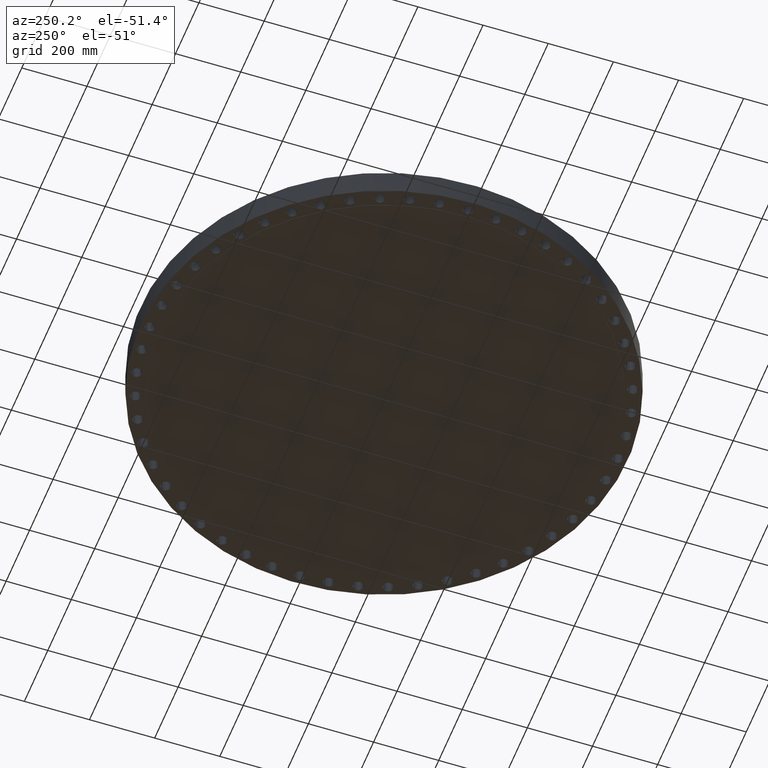
[diagram: clean part render]
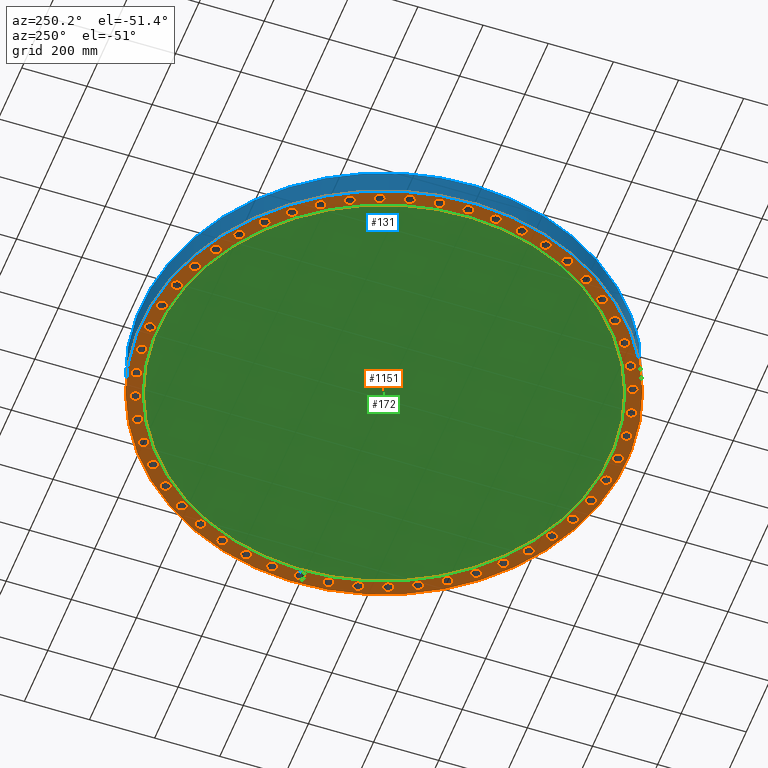
[diagram: same view with three faces highlighted in distinct colors, each labeled with its STEP entity id]
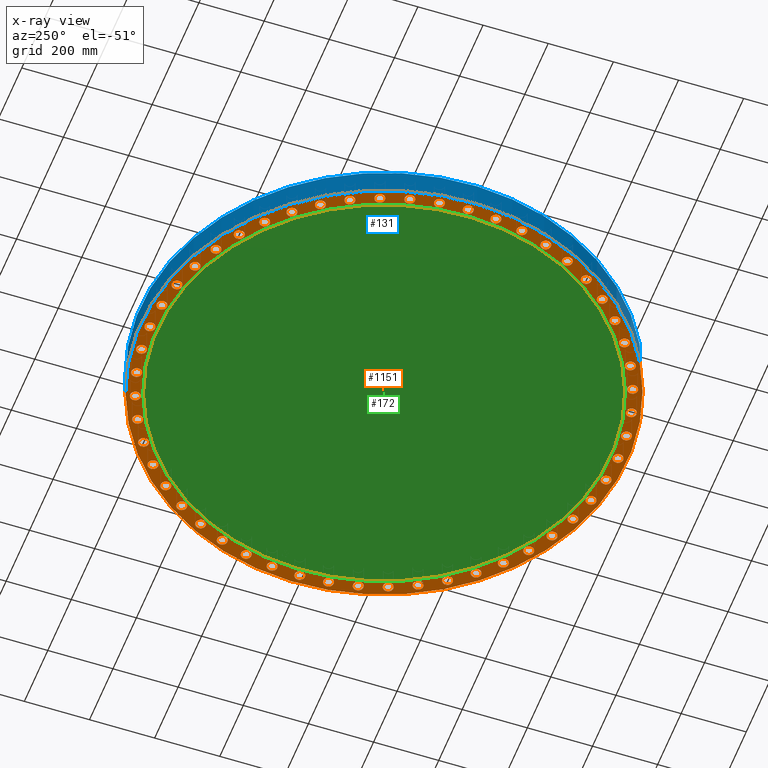
[diagram: x-ray of the same camera — body ghosted, the three highlighted faces saturated]
A machine part, auxiliary view with three faces highlighted in distinct colors.
The next image is the same camera in x-ray (body ghosted, the three faces saturated) — at least one of them is partly hidden behind the body in this view.
Their STEP definitions:

[orange] entity #1151 — the highlighted planar face has unit normal (0, 0, -1).
#51=AXIS2_PLACEMENT_3D('Circle Axis2P3D',#49,#50,$) ;
#77=AXIS2_PLACEMENT_3D('Circle Axis2P3D',#75,#76,$) ;
#99=AXIS2_PLACEMENT_3D('Circle Axis2P3D',#97,#98,$) ;
#134=AXIS2_PLACEMENT_3D('Circle Axis2P3D',#132,#133,$) ;
#187=AXIS2_PLACEMENT_3D('Circle Axis2P3D',#185,#186,$) ;
#206=AXIS2_PLACEMENT_3D('Circle Axis2P3D',#204,#205,$) ;
#219=AXIS2_PLACEMENT_3D('Plane Axis2P3D',#216,#217,#218) ;
#235=AXIS2_PLACEMENT_3D('Circle Axis2P3D',#233,#234,$) ;
#244=AXIS2_PLACEMENT_3D('Circle Axis2P3D',#242,#243,$) ;
#253=AXIS2_PLACEMENT_3D('Circle Axis2P3D',#251,#252,$) ;
#262=AXIS2_PLACEMENT_3D('Circle Axis2P3D',#260,#261,$) ;
#271=AXIS2_PLACEMENT_3D('Circle Axis2P3D',#269,#270,$) ;
#280=AXIS2_PLACEMENT_3D('Circle Axis2P3D',#278,#279,$) ;
#289=AXIS2_PLACEMENT_3D('Circle Axis2P3D',#287,#288,$) ;
#298=AXIS2_PLACEMENT_3D('Circle Axis2P3D',#296,#297,$) ;
#307=AXIS2_PLACEMENT_3D('Circle Axis2P3D',#305,#306,$) ;
#316=AXIS2_PLACEMENT_3D('Circle Axis2P3D',#314,#315,$) ;
#325=AXIS2_PLACEMENT_3D('Circle Axis2P3D',#323,#324,$) ;
#334=AXIS2_PLACEMENT_3D('Circle Axis2P3D',#332,#333,$) ;
#343=AXIS2_PLACEMENT_3D('Circle Axis2P3D',#341,#342,$) ;
#352=AXIS2_PLACEMENT_3D('Circle Axis2P3D',#350,#351,$) ;
#361=AXIS2_PLACEMENT_3D('Circle Axis2P3D',#359,#360,$) ;
#370=AXIS2_PLACEMENT_3D('Circle Axis2P3D',#368,#369,$) ;
#379=AXIS2_PLACEMENT_3D('Circle Axis2P3D',#377,#378,$) ;
#388=AXIS2_PLACEMENT_3D('Circle Axis2P3D',#386,#387,$) ;
#397=AXIS2_PLACEMENT_3D('Circle Axis2P3D',#395,#396,$) ;
#406=AXIS2_PLACEMENT_3D('Circle Axis2P3D',#404,#405,$) ;
#415=AXIS2_PLACEMENT_3D('Circle Axis2P3D',#413,#414,$) ;
#424=AXIS2_PLACEMENT_3D('Circle Axis2P3D',#422,#423,$) ;
#433=AXIS2_PLACEMENT_3D('Circle Axis2P3D',#431,#432,$) ;
#442=AXIS2_PLACEMENT_3D('Circle Axis2P3D',#440,#441,$) ;
#451=AXIS2_PLACEMENT_3D('Circle Axis2P3D',#449,#450,$) ;
#460=AXIS2_PLACEMENT_3D('Circle Axis2P3D',#458,#459,$) ;
#469=AXIS2_PLACEMENT_3D('Circle Axis2P3D',#467,#468,$) ;
#478=AXIS2_PLACEMENT_3D('Circle Axis2P3D',#476,#477,$) ;
#487=AXIS2_PLACEMENT_3D('Circle Axis2P3D',#485,#486,$) ;
#496=AXIS2_PLACEMENT_3D('Circle Axis2P3D',#494,#495,$) ;
#505=AXIS2_PLACEMENT_3D('Circle Axis2P3D',#503,#504,$) ;
#514=AXIS2_PLACEMENT_3D('Circle Axis2P3D',#512,#513,$) ;
#523=AXIS2_PLACEMENT_3D('Circle Axis2P3D',#521,#522,$) ;
#532=AXIS2_PLACEMENT_3D('Circle Axis2P3D',#530,#531,$) ;
#541=AXIS2_PLACEMENT_3D('Circle Axis2P3D',#539,#540,$) ;
#550=AXIS2_PLACEMENT_3D('Circle Axis2P3D',#548,#549,$) ;
#559=AXIS2_PLACEMENT_3D('Circle Axis2P3D',#557,#558,$) ;
#568=AXIS2_PLACEMENT_3D('Circle Axis2P3D',#566,#567,$) ;
#577=AXIS2_PLACEMENT_3D('Circle Axis2P3D',#575,#576,$) ;
#586=AXIS2_PLACEMENT_3D('Circle Axis2P3D',#584,#585,$) ;
#595=AXIS2_PLACEMENT_3D('Circle Axis2P3D',#593,#594,$) ;
#604=AXIS2_PLACEMENT_3D('Circle Axis2P3D',#602,#603,$) ;
#613=AXIS2_PLACEMENT_3D('Circle Axis2P3D',#611,#612,$) ;
#622=AXIS2_PLACEMENT_3D('Circle Axis2P3D',#620,#621,$) ;
#631=AXIS2_PLACEMENT_3D('Circle Axis2P3D',#629,#630,$) ;
#640=AXIS2_PLACEMENT_3D('Circle Axis2P3D',#638,#639,$) ;
#649=AXIS2_PLACEMENT_3D('Circle Axis2P3D',#647,#648,$) ;
#658=AXIS2_PLACEMENT_3D('Circle Axis2P3D',#656,#657,$) ;
#667=AXIS2_PLACEMENT_3D('Circle Axis2P3D',#665,#666,$) ;
#676=AXIS2_PLACEMENT_3D('Circle Axis2P3D',#674,#675,$) ;
#685=AXIS2_PLACEMENT_3D('Circle Axis2P3D',#683,#684,$) ;
#694=AXIS2_PLACEMENT_3D('Circle Axis2P3D',#692,#693,$) ;
#703=AXIS2_PLACEMENT_3D('Circle Axis2P3D',#701,#702,$) ;
#712=AXIS2_PLACEMENT_3D('Circle Axis2P3D',#710,#711,$) ;
#721=AXIS2_PLACEMENT_3D('Circle Axis2P3D',#719,#720,$) ;
#730=AXIS2_PLACEMENT_3D('Circle Axis2P3D',#728,#729,$) ;
#739=AXIS2_PLACEMENT_3D('Circle Axis2P3D',#737,#738,$) ;
#748=AXIS2_PLACEMENT_3D('Circle Axis2P3D',#746,#747,$) ;
#757=AXIS2_PLACEMENT_3D('Circle Axis2P3D',#755,#756,$) ;
#766=AXIS2_PLACEMENT_3D('Circle Axis2P3D',#764,#765,$) ;
#775=AXIS2_PLACEMENT_3D('Circle Axis2P3D',#773,#774,$) ;
#784=AXIS2_PLACEMENT_3D('Circle Axis2P3D',#782,#783,$) ;
#793=AXIS2_PLACEMENT_3D('Circle Axis2P3D',#791,#792,$) ;
#802=AXIS2_PLACEMENT_3D('Circle Axis2P3D',#800,#801,$) ;
#811=AXIS2_PLACEMENT_3D('Circle Axis2P3D',#809,#810,$) ;
#820=AXIS2_PLACEMENT_3D('Circle Axis2P3D',#818,#819,$) ;
#829=AXIS2_PLACEMENT_3D('Circle Axis2P3D',#827,#828,$) ;
#838=AXIS2_PLACEMENT_3D('Circle Axis2P3D',#836,#837,$) ;
#847=AXIS2_PLACEMENT_3D('Circle Axis2P3D',#845,#846,$) ;
#856=AXIS2_PLACEMENT_3D('Circle Axis2P3D',#854,#855,$) ;
#865=AXIS2_PLACEMENT_3D('Circle Axis2P3D',#863,#864,$) ;
#874=AXIS2_PLACEMENT_3D('Circle Axis2P3D',#872,#873,$) ;
#883=AXIS2_PLACEMENT_3D('Circle Axis2P3D',#881,#882,$) ;
#892=AXIS2_PLACEMENT_3D('Circle Axis2P3D',#890,#891,$) ;
#901=AXIS2_PLACEMENT_3D('Circle Axis2P3D',#899,#900,$) ;
#910=AXIS2_PLACEMENT_3D('Circle Axis2P3D',#908,#909,$) ;
#919=AXIS2_PLACEMENT_3D('Circle Axis2P3D',#917,#918,$) ;
#928=AXIS2_PLACEMENT_3D('Circle Axis2P3D',#926,#927,$) ;
#937=AXIS2_PLACEMENT_3D('Circle Axis2P3D',#935,#936,$) ;
#946=AXIS2_PLACEMENT_3D('Circle Axis2P3D',#944,#945,$) ;
#955=AXIS2_PLACEMENT_3D('Circle Axis2P3D',#953,#954,$) ;
#964=AXIS2_PLACEMENT_3D('Circle Axis2P3D',#962,#963,$) ;
#973=AXIS2_PLACEMENT_3D('Circle Axis2P3D',#971,#972,$) ;
#982=AXIS2_PLACEMENT_3D('Circle Axis2P3D',#980,#981,$) ;
#991=AXIS2_PLACEMENT_3D('Circle Axis2P3D',#989,#990,$) ;
#1000=AXIS2_PLACEMENT_3D('Circle Axis2P3D',#998,#999,$) ;
#1009=AXIS2_PLACEMENT_3D('Circle Axis2P3D',#1007,#1008,$) ;
#1018=AXIS2_PLACEMENT_3D('Circle Axis2P3D',#1016,#1017,$) ;
#1027=AXIS2_PLACEMENT_3D('Circle Axis2P3D',#1025,#1026,$) ;
#1036=AXIS2_PLACEMENT_3D('Circle Axis2P3D',#1034,#1035,$) ;
#1045=AXIS2_PLACEMENT_3D('Circle Axis2P3D',#1043,#1044,$) ;
#1054=AXIS2_PLACEMENT_3D('Circle Axis2P3D',#1052,#1053,$) ;
#1063=AXIS2_PLACEMENT_3D('Circle Axis2P3D',#1061,#1062,$) ;
#1072=AXIS2_PLACEMENT_3D('Circle Axis2P3D',#1070,#1071,$) ;
#1081=AXIS2_PLACEMENT_3D('Circle Axis2P3D',#1079,#1080,$) ;
#1090=AXIS2_PLACEMENT_3D('Circle Axis2P3D',#1088,#1089,$) ;
#1099=AXIS2_PLACEMENT_3D('Circle Axis2P3D',#1097,#1098,$) ;
#1108=AXIS2_PLACEMENT_3D('Circle Axis2P3D',#1106,#1107,$) ;
#1117=AXIS2_PLACEMENT_3D('Circle Axis2P3D',#1115,#1116,$) ;
#1126=AXIS2_PLACEMENT_3D('Circle Axis2P3D',#1124,#1125,$) ;
#1135=AXIS2_PLACEMENT_3D('Circle Axis2P3D',#1133,#1134,$) ;
#1144=AXIS2_PLACEMENT_3D('Circle Axis2P3D',#1142,#1143,$) ;
#44=CARTESIAN_POINT('Vertex',(27.7315108989,0.299640961629,0.)) ;
#49=CARTESIAN_POINT('Axis2P3D Location',(28.2800000001,0.,0.)) ;
#53=CARTESIAN_POINT('Vertex',(28.8284891013,-0.299640961629,0.)) ;
#75=CARTESIAN_POINT('Axis2P3D Location',(28.2800000001,0.,0.)) ;
#97=CARTESIAN_POINT('Axis2P3D Location',(0.,0.,3.07715358006E-015)) ;
#101=CARTESIAN_POINT('Vertex',(-14.0975079627,-25.8053152325,3.07715358006E-015)) ;
#103=CARTESIAN_POINT('Vertex',(14.0975079627,25.8053152325,3.07715358006E-015)) ;
#132=CARTESIAN_POINT('Axis2P3D Location',(0.,0.,3.07715358006E-015)) ;
#182=CARTESIAN_POINT('Vertex',(-13.1242741193,-24.0238226318,3.63663604917E-015)) ;
#185=CARTESIAN_POINT('Axis2P3D Location',(0.,0.,3.63663604917E-015)) ;
#189=CARTESIAN_POINT('Vertex',(13.1242741193,24.0238226318,3.63663604917E-015)) ;
#204=CARTESIAN_POINT('Axis2P3D Location',(0.,0.,3.63663604917E-015)) ;
#216=CARTESIAN_POINT('Axis2P3D Location',(0.,27.3750000001,0.)) ;
#233=CARTESIAN_POINT('Axis2P3D Location',(28.0738069596,-3.40877731763,0.)) ;
#237=CARTESIAN_POINT('Vertex',(27.5654346883,-3.04520802057,0.)) ;
#239=CARTESIAN_POINT('Vertex',(28.5821792309,-3.7723466147,0.)) ;
#242=CARTESIAN_POINT('Axis2P3D Location',(28.0738069596,-3.40877731763,0.)) ;
#251=CARTESIAN_POINT('Axis2P3D Location',(27.4582345969,-6.76784698608,0.)) ;
#255=CARTESIAN_POINT('Vertex',(26.997392368,-6.34565101262,0.)) ;
#257=CARTESIAN_POINT('Vertex',(27.9190768259,-7.19004295954,-3.35689481461E-015)) ;
#260=CARTESIAN_POINT('Axis2P3D Location',(27.4582345969,-6.76784698608,0.)) ;
#269=CARTESIAN_POINT('Axis2P3D Location',(26.4422593432,-10.0282262056,0.)) ;
#273=CARTESIAN_POINT('Vertex',(26.0356672741,-9.55356012374,0.)) ;
#275=CARTESIAN_POINT('Vertex',(26.8488514124,-10.5028922875,0.)) ;
#278=CARTESIAN_POINT('Axis2P3D Location',(26.4422593432,-10.0282262056,0.)) ;
#287=CARTESIAN_POINT('Axis2P3D Location',(25.0406964056,-13.1423713055,0.)) ;
#291=CARTESIAN_POINT('Vertex',(24.6942835241,-12.6221568155,0.)) ;
#293=CARTESIAN_POINT('Vertex',(25.3871092871,-13.6625857954,0.)) ;
#296=CARTESIAN_POINT('Axis2P3D Location',(25.0406964056,-13.1423713055,0.)) ;
#305=CARTESIAN_POINT('Axis2P3D Location',(23.2739837276,-16.0648710376,0.)) ;
#309=CARTESIAN_POINT('Vertex',(22.9928015137,-15.5066940383,0.)) ;
#311=CARTESIAN_POINT('Vertex',(23.5551659415,-16.623048037,0.)) ;
#314=CARTESIAN_POINT('Axis2P3D Location',(23.2739837276,-16.0648710376,0.)) ;
#323=CARTESIAN_POINT('Axis2P3D Location',(21.1678839584,-18.7531087751,0.)) ;
#327=CARTESIAN_POINT('Vertex',(20.9560326819,-18.165108744,0.)) ;
#329=CARTESIAN_POINT('Vertex',(21.3797352349,-19.3411088063,0.)) ;
#332=CARTESIAN_POINT('Axis2P3D Location',(21.1678839584,-18.7531087751,0.)) ;
#341=CARTESIAN_POINT('Axis2P3D Location',(18.7531087751,-21.1678839584,0.)) ;
#345=CARTESIAN_POINT('Vertex',(18.6136777047,-20.5586352599,0.)) ;
#347=CARTESIAN_POINT('Vertex',(18.8925398455,-21.7771326568,0.)) ;
#350=CARTESIAN_POINT('Axis2P3D Location',(18.7531087751,-21.1678839584,0.)) ;
#359=CARTESIAN_POINT('Axis2P3D Location',(16.0648710376,-23.2739837276,0.)) ;
#363=CARTESIAN_POINT('Vertex',(15.9998933923,-22.6523705797,0.)) ;
#365=CARTESIAN_POINT('Vertex',(16.129848683,-23.8955968754,0.)) ;
#368=CARTESIAN_POINT('Axis2P3D Location',(16.0648710376,-23.2739837276,0.)) ;
#377=CARTESIAN_POINT('Axis2P3D Location',(13.1423713055,-25.0406964056,0.)) ;
#381=CARTESIAN_POINT('Vertex',(13.1527946055,-24.4157833278,0.)) ;
#383=CARTESIAN_POINT('Vertex',(13.1319480054,-25.6656094834,-1.1189649382E-015)) ;
#386=CARTESIAN_POINT('Axis2P3D Location',(13.1423713055,-25.0406964056,0.)) ;
#395=CARTESIAN_POINT('Axis2P3D Location',(10.0282262056,-26.4422593432,0.)) ;
#399=CARTESIAN_POINT('Vertex',(10.1138984559,-25.8231589754,0.)) ;
#401=CARTESIAN_POINT('Vertex',(9.94255395528,-27.0613597111,-3.35689481461E-015)) ;
#404=CARTESIAN_POINT('Axis2P3D Location',(10.0282262056,-26.4422593432,0.)) ;
#413=CARTESIAN_POINT('Axis2P3D Location',(6.76784698608,-27.4582345969,0.)) ;
#417=CARTESIAN_POINT('Vertex',(6.92751889233,-26.8539748164,0.)) ;
#419=CARTESIAN_POINT('Vertex',(6.60817507982,-28.0624943774,0.)) ;
#422=CARTESIAN_POINT('Axis2P3D Location',(6.76784698608,-27.4582345969,0.)) ;
#431=CARTESIAN_POINT('Axis2P3D Location',(3.40877731763,-28.0738069596,0.)) ;
#435=CARTESIAN_POINT('Vertex',(3.64012050387,-27.4931992347,0.)) ;
#437=CARTESIAN_POINT('Vertex',(3.17743413139,-28.6544146845,0.)) ;
#440=CARTESIAN_POINT('Axis2P3D Location',(3.40877731763,-28.0738069596,0.)) ;
#449=CARTESIAN_POINT('Axis2P3D Location',(7.90268987607E-015,-28.2800000001,0.)) ;
#453=CARTESIAN_POINT('Vertex',(0.299640961629,-27.7315108989,0.)) ;
#455=CARTESIAN_POINT('Vertex',(-0.299640961629,-28.8284891013,0.)) ;
#458=CARTESIAN_POINT('Axis2P3D Location',(8.46217234517E-015,-28.2800000001,0.)) ;
#467=CARTESIAN_POINT('Axis2P3D Location',(-3.40877731763,-28.0738069596,0.)) ;
#471=CARTESIAN_POINT('Vertex',(-3.04520802057,-27.5654346883,0.)) ;
#473=CARTESIAN_POINT('Vertex',(-3.7723466147,-28.5821792309,0.)) ;
#476=CARTESIAN_POINT('Axis2P3D Location',(-3.40877731763,-28.0738069596,0.)) ;
#485=CARTESIAN_POINT('Axis2P3D Location',(-6.76784698608,-27.4582345969,0.)) ;
#489=CARTESIAN_POINT('Vertex',(-6.34565101262,-26.997392368,0.)) ;
#491=CARTESIAN_POINT('Vertex',(-7.19004295954,-27.9190768259,-3.35689481461E-015)) ;
#494=CARTESIAN_POINT('Axis2P3D Location',(-6.76784698608,-27.4582345969,0.)) ;
#503=CARTESIAN_POINT('Axis2P3D Location',(-10.0282262056,-26.4422593432,0.)) ;
#507=CARTESIAN_POINT('Vertex',(-9.55356012374,-26.0356672741,0.)) ;
#509=CARTESIAN_POINT('Vertex',(-10.5028922875,-26.8488514124,-3.35689481461E-015)) ;
#512=CARTESIAN_POINT('Axis2P3D Location',(-10.0282262056,-26.4422593432,0.)) ;
#521=CARTESIAN_POINT('Axis2P3D Location',(-13.1423713055,-25.0406964056,0.)) ;
#525=CARTESIAN_POINT('Vertex',(-12.6221568155,-24.6942835241,0.)) ;
#527=CARTESIAN_POINT('Vertex',(-13.6625857954,-25.3871092871,0.)) ;
#530=CARTESIAN_POINT('Axis2P3D Location',(-13.1423713055,-25.0406964056,0.)) ;
#539=CARTESIAN_POINT('Axis2P3D Location',(-16.0648710376,-23.2739837276,0.)) ;
#543=CARTESIAN_POINT('Vertex',(-15.5066940383,-22.9928015137,0.)) ;
#545=CARTESIAN_POINT('Vertex',(-16.623048037,-23.5551659415,0.)) ;
#548=CARTESIAN_POINT('Axis2P3D Location',(-16.0648710376,-23.2739837276,0.)) ;
#557=CARTESIAN_POINT('Axis2P3D Location',(-18.7531087751,-21.1678839584,0.)) ;
#561=CARTESIAN_POINT('Vertex',(-18.165108744,-20.9560326819,0.)) ;
#563=CARTESIAN_POINT('Vertex',(-19.3411088063,-21.3797352349,0.)) ;
#566=CARTESIAN_POINT('Axis2P3D Location',(-18.7531087751,-21.1678839584,0.)) ;
#575=CARTESIAN_POINT('Axis2P3D Location',(-21.1678839584,-18.7531087751,0.)) ;
#579=CARTESIAN_POINT('Vertex',(-20.5586352599,-18.6136777047,0.)) ;
#581=CARTESIAN_POINT('Vertex',(-21.7771326568,-18.8925398455,0.)) ;
#584=CARTESIAN_POINT('Axis2P3D Location',(-21.1678839584,-18.7531087751,0.)) ;
#593=CARTESIAN_POINT('Axis2P3D Location',(-23.2739837276,-16.0648710376,0.)) ;
#597=CARTESIAN_POINT('Vertex',(-22.6523705797,-15.9998933923,0.)) ;
#599=CARTESIAN_POINT('Vertex',(-23.8955968754,-16.129848683,-3.35689481461E-015)) ;
#602=CARTESIAN_POINT('Axis2P3D Location',(-23.2739837276,-16.0648710376,0.)) ;
#611=CARTESIAN_POINT('Axis2P3D Location',(-25.0406964056,-13.1423713055,0.)) ;
#615=CARTESIAN_POINT('Vertex',(-24.4157833278,-13.1527946055,0.)) ;
#617=CARTESIAN_POINT('Vertex',(-25.6656094834,-13.1319480054,0.)) ;
#620=CARTESIAN_POINT('Axis2P3D Location',(-25.0406964056,-13.1423713055,0.)) ;
#629=CARTESIAN_POINT('Axis2P3D Location',(-26.4422593432,-10.0282262056,0.)) ;
#633=CARTESIAN_POINT('Vertex',(-25.8231589754,-10.1138984559,0.)) ;
#635=CARTESIAN_POINT('Vertex',(-27.0613597111,-9.94255395528,-3.35689481461E-015)) ;
#638=CARTESIAN_POINT('Axis2P3D Location',(-26.4422593432,-10.0282262056,0.)) ;
#647=CARTESIAN_POINT('Axis2P3D Location',(-27.4582345969,-6.76784698608,0.)) ;
#651=CARTESIAN_POINT('Vertex',(-26.8539748164,-6.92751889233,0.)) ;
#653=CARTESIAN_POINT('Vertex',(-28.0624943774,-6.60817507982,-3.35689481461E-015)) ;
#656=CARTESIAN_POINT('Axis2P3D Location',(-27.4582345969,-6.76784698608,0.)) ;
#665=CARTESIAN_POINT('Axis2P3D Location',(-28.0738069596,-3.40877731763,0.)) ;
#669=CARTESIAN_POINT('Vertex',(-27.4931992347,-3.64012050387,0.)) ;
#671=CARTESIAN_POINT('Vertex',(-28.6544146845,-3.17743413139,0.)) ;
#674=CARTESIAN_POINT('Axis2P3D Location',(-28.0738069596,-3.40877731763,0.)) ;
#683=CARTESIAN_POINT('Axis2P3D Location',(-28.2800000001,-1.79034390113E-014,0.)) ;
#687=CARTESIAN_POINT('Vertex',(-27.7315108989,-0.299640961629,0.)) ;
#689=CARTESIAN_POINT('Vertex',(-28.8284891013,0.299640961629,0.)) ;
#692=CARTESIAN_POINT('Axis2P3D Location',(-28.2800000001,-8.95171950564E-015,0.)) ;
#701=CARTESIAN_POINT('Axis2P3D Location',(-28.0738069596,3.40877731763,0.)) ;
#705=CARTESIAN_POINT('Vertex',(-27.5654346883,3.04520802057,0.)) ;
#707=CARTESIAN_POINT('Vertex',(-28.5821792309,3.7723466147,-3.35689481461E-015)) ;
#710=CARTESIAN_POINT('Axis2P3D Location',(-28.0738069596,3.40877731763,0.)) ;
#719=CARTESIAN_POINT('Axis2P3D Location',(-27.4582345969,6.76784698608,0.)) ;
#723=CARTESIAN_POINT('Vertex',(-26.997392368,6.34565101262,0.)) ;
#725=CARTESIAN_POINT('Vertex',(-27.9190768259,7.19004295954,0.)) ;
#728=CARTESIAN_POINT('Axis2P3D Location',(-27.4582345969,6.76784698608,0.)) ;
#737=CARTESIAN_POINT('Axis2P3D Location',(-26.4422593432,10.0282262056,0.)) ;
#741=CARTESIAN_POINT('Vertex',(-26.0356672741,9.55356012374,0.)) ;
#743=CARTESIAN_POINT('Vertex',(-26.8488514124,10.5028922875,0.)) ;
#746=CARTESIAN_POINT('Axis2P3D Location',(-26.4422593432,10.0282262056,0.)) ;
#755=CARTESIAN_POINT('Axis2P3D Location',(-25.0406964056,13.1423713055,0.)) ;
#759=CARTESIAN_POINT('Vertex',(-24.6942835241,12.6221568155,0.)) ;
#761=CARTESIAN_POINT('Vertex',(-25.3871092871,13.6625857954,0.)) ;
#764=CARTESIAN_POINT('Axis2P3D Location',(-25.0406964056,13.1423713055,0.)) ;
#773=CARTESIAN_POINT('Axis2P3D Location',(-23.2739837276,16.0648710376,0.)) ;
#777=CARTESIAN_POINT('Vertex',(-22.9928015137,15.5066940383,0.)) ;
#779=CARTESIAN_POINT('Vertex',(-23.5551659415,16.623048037,0.)) ;
#782=CARTESIAN_POINT('Axis2P3D Location',(-23.2739837276,16.0648710376,0.)) ;
#791=CARTESIAN_POINT('Axis2P3D Location',(-21.1678839584,18.7531087751,0.)) ;
#795=CARTESIAN_POINT('Vertex',(-20.9560326819,18.165108744,0.)) ;
#797=CARTESIAN_POINT('Vertex',(-21.3797352349,19.3411088063,0.)) ;
#800=CARTESIAN_POINT('Axis2P3D Location',(-21.1678839584,18.7531087751,0.)) ;
#809=CARTESIAN_POINT('Axis2P3D Location',(-18.7531087751,21.1678839584,0.)) ;
#813=CARTESIAN_POINT('Vertex',(-18.6136777047,20.5586352599,0.)) ;
#815=CARTESIAN_POINT('Vertex',(-18.8925398455,21.7771326568,0.)) ;
#818=CARTESIAN_POINT('Axis2P3D Location',(-18.7531087751,21.1678839584,0.)) ;
#827=CARTESIAN_POINT('Axis2P3D Location',(-16.0648710376,23.2739837276,0.)) ;
#831=CARTESIAN_POINT('Vertex',(-15.9998933923,22.6523705797,0.)) ;
#833=CARTESIAN_POINT('Vertex',(-16.129848683,23.8955968754,0.)) ;
#836=CARTESIAN_POINT('Axis2P3D Location',(-16.0648710376,23.2739837276,0.)) ;
#845=CARTESIAN_POINT('Axis2P3D Location',(-13.1423713055,25.0406964056,0.)) ;
#849=CARTESIAN_POINT('Vertex',(-13.1527946055,24.4157833278,0.)) ;
#851=CARTESIAN_POINT('Vertex',(-13.1319480054,25.6656094834,-3.35689481461E-015)) ;
#854=CARTESIAN_POINT('Axis2P3D Location',(-13.1423713055,25.0406964056,0.)) ;
#863=CARTESIAN_POINT('Axis2P3D Location',(-10.0282262056,26.4422593432,0.)) ;
#867=CARTESIAN_POINT('Vertex',(-10.1138984559,25.8231589754,0.)) ;
#869=CARTESIAN_POINT('Vertex',(-9.94255395528,27.0613597111,0.)) ;
#872=CARTESIAN_POINT('Axis2P3D Location',(-10.0282262056,26.4422593432,0.)) ;
#881=CARTESIAN_POINT('Axis2P3D Location',(-6.76784698608,27.4582345969,0.)) ;
#885=CARTESIAN_POINT('Vertex',(-6.92751889233,26.8539748164,0.)) ;
#887=CARTESIAN_POINT('Vertex',(-6.60817507982,28.0624943774,-3.35689481461E-015)) ;
#890=CARTESIAN_POINT('Axis2P3D Location',(-6.76784698608,27.4582345969,0.)) ;
#899=CARTESIAN_POINT('Axis2P3D Location',(-3.40877731763,28.0738069596,0.)) ;
#903=CARTESIAN_POINT('Vertex',(-3.64012050387,27.4931992347,0.)) ;
#905=CARTESIAN_POINT('Vertex',(-3.17743413139,28.6544146845,-1.1189649382E-015)) ;
#908=CARTESIAN_POINT('Axis2P3D Location',(-3.40877731763,28.0738069596,0.)) ;
#917=CARTESIAN_POINT('Axis2P3D Location',(-4.75560098737E-015,28.2800000001,0.)) ;
#921=CARTESIAN_POINT('Vertex',(-0.299640961629,27.7315108989,0.)) ;
#923=CARTESIAN_POINT('Vertex',(0.299640961629,28.8284891013,0.)) ;
#926=CARTESIAN_POINT('Axis2P3D Location',(-5.66475999966E-015,28.2800000001,0.)) ;
#935=CARTESIAN_POINT('Axis2P3D Location',(3.40877731763,28.0738069596,0.)) ;
#939=CARTESIAN_POINT('Vertex',(3.04520802057,27.5654346883,0.)) ;
#941=CARTESIAN_POINT('Vertex',(3.7723466147,28.5821792309,0.)) ;
#944=CARTESIAN_POINT('Axis2P3D Location',(3.40877731763,28.0738069596,0.)) ;
#953=CARTESIAN_POINT('Axis2P3D Location',(6.76784698608,27.4582345969,0.)) ;
#957=CARTESIAN_POINT('Vertex',(6.34565101262,26.997392368,0.)) ;
#959=CARTESIAN_POINT('Vertex',(7.19004295954,27.9190768259,0.)) ;
#962=CARTESIAN_POINT('Axis2P3D Location',(6.76784698608,27.4582345969,0.)) ;
#971=CARTESIAN_POINT('Axis2P3D Location',(10.0282262056,26.4422593432,0.)) ;
#975=CARTESIAN_POINT('Vertex',(9.55356012374,26.0356672741,0.)) ;
#977=CARTESIAN_POINT('Vertex',(10.5028922875,26.8488514124,0.)) ;
#980=CARTESIAN_POINT('Axis2P3D Location',(10.0282262056,26.4422593432,0.)) ;
#989=CARTESIAN_POINT('Axis2P3D Location',(13.1423713055,25.0406964056,0.)) ;
#993=CARTESIAN_POINT('Vertex',(12.6221568155,24.6942835241,0.)) ;
#995=CARTESIAN_POINT('Vertex',(13.6625857954,25.3871092871,-3.35689481461E-015)) ;
#998=CARTESIAN_POINT('Axis2P3D Location',(13.1423713055,25.0406964056,0.)) ;
#1007=CARTESIAN_POINT('Axis2P3D Location',(16.0648710376,23.2739837276,0.)) ;
#1011=CARTESIAN_POINT('Vertex',(15.5066940383,22.9928015137,0.)) ;
#1013=CARTESIAN_POINT('Vertex',(16.623048037,23.5551659415,0.)) ;
#1016=CARTESIAN_POINT('Axis2P3D Location',(16.0648710376,23.2739837276,0.)) ;
#1025=CARTESIAN_POINT('Axis2P3D Location',(18.7531087751,21.1678839584,0.)) ;
#1029=CARTESIAN_POINT('Vertex',(18.165108744,20.9560326819,0.)) ;
#1031=CARTESIAN_POINT('Vertex',(19.3411088063,21.3797352349,0.)) ;
#1034=CARTESIAN_POINT('Axis2P3D Location',(18.7531087751,21.1678839584,0.)) ;
#1043=CARTESIAN_POINT('Axis2P3D Location',(21.1678839584,18.7531087751,0.)) ;
#1047=CARTESIAN_POINT('Vertex',(20.5586352599,18.6136777047,0.)) ;
#1049=CARTESIAN_POINT('Vertex',(21.7771326568,18.8925398455,0.)) ;
#1052=CARTESIAN_POINT('Axis2P3D Location',(21.1678839584,18.7531087751,0.)) ;
#1061=CARTESIAN_POINT('Axis2P3D Location',(23.2739837276,16.0648710376,0.)) ;
#1065=CARTESIAN_POINT('Vertex',(22.6523705797,15.9998933923,0.)) ;
#1067=CARTESIAN_POINT('Vertex',(23.8955968754,16.129848683,0.)) ;
#1070=CARTESIAN_POINT('Axis2P3D Location',(23.2739837276,16.0648710376,0.)) ;
#1079=CARTESIAN_POINT('Axis2P3D Location',(25.0406964056,13.1423713055,0.)) ;
#1083=CARTESIAN_POINT('Vertex',(24.4157833278,13.1527946055,0.)) ;
#1085=CARTESIAN_POINT('Vertex',(25.6656094834,13.1319480054,0.)) ;
#1088=CARTESIAN_POINT('Axis2P3D Location',(25.0406964056,13.1423713055,0.)) ;
#1097=CARTESIAN_POINT('Axis2P3D Location',(26.4422593432,10.0282262056,0.)) ;
#1101=CARTESIAN_POINT('Vertex',(25.8231589754,10.1138984559,0.)) ;
#1103=CARTESIAN_POINT('Vertex',(27.0613597111,9.94255395528,0.)) ;
#1106=CARTESIAN_POINT('Axis2P3D Location',(26.4422593432,10.0282262056,0.)) ;
#1115=CARTESIAN_POINT('Axis2P3D Location',(27.4582345969,6.76784698608,0.)) ;
#1119=CARTESIAN_POINT('Vertex',(26.8539748164,6.92751889233,0.)) ;
#1121=CARTESIAN_POINT('Vertex',(28.0624943774,6.60817507982,-3.35689481461E-015)) ;
#1124=CARTESIAN_POINT('Axis2P3D Location',(27.4582345969,6.76784698608,0.)) ;
#1133=CARTESIAN_POINT('Axis2P3D Location',(28.0738069596,3.40877731763,0.)) ;
#1137=CARTESIAN_POINT('Vertex',(27.4931992347,3.64012050387,0.)) ;
#1139=CARTESIAN_POINT('Vertex',(28.6544146845,3.17743413139,-1.1189649382E-015)) ;
#1142=CARTESIAN_POINT('Axis2P3D Location',(28.0738069596,3.40877731763,0.)) ;
#50=DIRECTION('Axis2P3D Direction',(0.,-0.,-0.0393700787402)) ;
#76=DIRECTION('Axis2P3D Direction',(0.,-0.,-0.0393700787402)) ;
#98=DIRECTION('Axis2P3D Direction',(0.,0.,-0.0393700787402)) ;
#133=DIRECTION('Axis2P3D Direction',(0.,0.,-0.0393700787402)) ;
#186=DIRECTION('Axis2P3D Direction',(0.,0.,-0.0393700787402)) ;
#205=DIRECTION('Axis2P3D Direction',(0.,0.,-0.0393700787402)) ;
#217=DIRECTION('Axis2P3D Direction',(0.,0.,-0.0393700787402)) ;
#218=DIRECTION('Axis2P3D XDirection',(0.0393700787402,0.,0.)) ;
#234=DIRECTION('Axis2P3D Direction',(0.,0.,-0.0393700787402)) ;
#243=DIRECTION('Axis2P3D Direction',(0.,0.,-0.0393700787402)) ;
#252=DIRECTION('Axis2P3D Direction',(0.,0.,-0.0393700787402)) ;
#261=DIRECTION('Axis2P3D Direction',(0.,0.,-0.0393700787402)) ;
#270=DIRECTION('Axis2P3D Direction',(0.,0.,-0.0393700787402)) ;
#279=DIRECTION('Axis2P3D Direction',(0.,0.,-0.0393700787402)) ;
#288=DIRECTION('Axis2P3D Direction',(0.,0.,-0.0393700787402)) ;
#297=DIRECTION('Axis2P3D Direction',(0.,0.,-0.0393700787402)) ;
#306=DIRECTION('Axis2P3D Direction',(0.,0.,-0.0393700787402)) ;
#315=DIRECTION('Axis2P3D Direction',(0.,0.,-0.0393700787402)) ;
#324=DIRECTION('Axis2P3D Direction',(0.,0.,-0.0393700787402)) ;
#333=DIRECTION('Axis2P3D Direction',(0.,0.,-0.0393700787402)) ;
#342=DIRECTION('Axis2P3D Direction',(0.,0.,-0.0393700787402)) ;
#351=DIRECTION('Axis2P3D Direction',(0.,0.,-0.0393700787402)) ;
#360=DIRECTION('Axis2P3D Direction',(0.,0.,-0.0393700787402)) ;
#369=DIRECTION('Axis2P3D Direction',(0.,0.,-0.0393700787402)) ;
#378=DIRECTION('Axis2P3D Direction',(0.,0.,-0.0393700787402)) ;
#387=DIRECTION('Axis2P3D Direction',(0.,0.,-0.0393700787402)) ;
#396=DIRECTION('Axis2P3D Direction',(0.,0.,-0.0393700787402)) ;
#405=DIRECTION('Axis2P3D Direction',(0.,0.,-0.0393700787402)) ;
#414=DIRECTION('Axis2P3D Direction',(0.,0.,-0.0393700787402)) ;
#423=DIRECTION('Axis2P3D Direction',(0.,0.,-0.0393700787402)) ;
#432=DIRECTION('Axis2P3D Direction',(0.,0.,-0.0393700787402)) ;
#441=DIRECTION('Axis2P3D Direction',(0.,0.,-0.0393700787402)) ;
#450=DIRECTION('Axis2P3D Direction',(0.,0.,-0.0393700787402)) ;
#459=DIRECTION('Axis2P3D Direction',(0.,0.,-0.0393700787402)) ;
#468=DIRECTION('Axis2P3D Direction',(0.,0.,-0.0393700787402)) ;
#477=DIRECTION('Axis2P3D Direction',(0.,0.,-0.0393700787402)) ;
#486=DIRECTION('Axis2P3D Direction',(0.,0.,-0.0393700787402)) ;
#495=DIRECTION('Axis2P3D Direction',(0.,0.,-0.0393700787402)) ;
#504=DIRECTION('Axis2P3D Direction',(0.,0.,-0.0393700787402)) ;
#513=DIRECTION('Axis2P3D Direction',(0.,0.,-0.0393700787402)) ;
#522=DIRECTION('Axis2P3D Direction',(0.,0.,-0.0393700787402)) ;
#531=DIRECTION('Axis2P3D Direction',(0.,0.,-0.0393700787402)) ;
#540=DIRECTION('Axis2P3D Direction',(0.,0.,-0.0393700787402)) ;
#549=DIRECTION('Axis2P3D Direction',(0.,0.,-0.0393700787402)) ;
#558=DIRECTION('Axis2P3D Direction',(0.,0.,-0.0393700787402)) ;
#567=DIRECTION('Axis2P3D Direction',(0.,0.,-0.0393700787402)) ;
#576=DIRECTION('Axis2P3D Direction',(0.,0.,-0.0393700787402)) ;
#585=DIRECTION('Axis2P3D Direction',(0.,0.,-0.0393700787402)) ;
#594=DIRECTION('Axis2P3D Direction',(0.,0.,-0.0393700787402)) ;
#603=DIRECTION('Axis2P3D Direction',(0.,0.,-0.0393700787402)) ;
#612=DIRECTION('Axis2P3D Direction',(0.,0.,-0.0393700787402)) ;
#621=DIRECTION('Axis2P3D Direction',(0.,0.,-0.0393700787402)) ;
#630=DIRECTION('Axis2P3D Direction',(0.,0.,-0.0393700787402)) ;
#639=DIRECTION('Axis2P3D Direction',(0.,0.,-0.0393700787402)) ;
#648=DIRECTION('Axis2P3D Direction',(0.,0.,-0.0393700787402)) ;
#657=DIRECTION('Axis2P3D Direction',(0.,0.,-0.0393700787402)) ;
#666=DIRECTION('Axis2P3D Direction',(0.,0.,-0.0393700787402)) ;
#675=DIRECTION('Axis2P3D Direction',(0.,0.,-0.0393700787402)) ;
#684=DIRECTION('Axis2P3D Direction',(0.,0.,-0.0393700787402)) ;
#693=DIRECTION('Axis2P3D Direction',(0.,0.,-0.0393700787402)) ;
#702=DIRECTION('Axis2P3D Direction',(0.,0.,-0.0393700787402)) ;
#711=DIRECTION('Axis2P3D Direction',(0.,0.,-0.0393700787402)) ;
#720=DIRECTION('Axis2P3D Direction',(0.,0.,-0.0393700787402)) ;
#729=DIRECTION('Axis2P3D Direction',(0.,0.,-0.0393700787402)) ;
#738=DIRECTION('Axis2P3D Direction',(0.,0.,-0.0393700787402)) ;
#747=DIRECTION('Axis2P3D Direction',(0.,0.,-0.0393700787402)) ;
#756=DIRECTION('Axis2P3D Direction',(0.,0.,-0.0393700787402)) ;
#765=DIRECTION('Axis2P3D Direction',(0.,0.,-0.0393700787402)) ;
#774=DIRECTION('Axis2P3D Direction',(0.,0.,-0.0393700787402)) ;
#783=DIRECTION('Axis2P3D Direction',(0.,0.,-0.0393700787402)) ;
#792=DIRECTION('Axis2P3D Direction',(0.,0.,-0.0393700787402)) ;
#801=DIRECTION('Axis2P3D Direction',(0.,0.,-0.0393700787402)) ;
#810=DIRECTION('Axis2P3D Direction',(0.,0.,-0.0393700787402)) ;
#819=DIRECTION('Axis2P3D Direction',(0.,0.,-0.0393700787402)) ;
#828=DIRECTION('Axis2P3D Direction',(0.,0.,-0.0393700787402)) ;
#837=DIRECTION('Axis2P3D Direction',(0.,0.,-0.0393700787402)) ;
#846=DIRECTION('Axis2P3D Direction',(0.,0.,-0.0393700787402)) ;
#855=DIRECTION('Axis2P3D Direction',(0.,0.,-0.0393700787402)) ;
#864=DIRECTION('Axis2P3D Direction',(0.,0.,-0.0393700787402)) ;
#873=DIRECTION('Axis2P3D Direction',(0.,0.,-0.0393700787402)) ;
#882=DIRECTION('Axis2P3D Direction',(0.,0.,-0.0393700787402)) ;
#891=DIRECTION('Axis2P3D Direction',(0.,0.,-0.0393700787402)) ;
#900=DIRECTION('Axis2P3D Direction',(0.,0.,-0.0393700787402)) ;
#909=DIRECTION('Axis2P3D Direction',(0.,0.,-0.0393700787402)) ;
#918=DIRECTION('Axis2P3D Direction',(0.,0.,-0.0393700787402)) ;
#927=DIRECTION('Axis2P3D Direction',(0.,0.,-0.0393700787402)) ;
#936=DIRECTION('Axis2P3D Direction',(0.,0.,-0.0393700787402)) ;
#945=DIRECTION('Axis2P3D Direction',(0.,0.,-0.0393700787402)) ;
#954=DIRECTION('Axis2P3D Direction',(0.,0.,-0.0393700787402)) ;
#963=DIRECTION('Axis2P3D Direction',(0.,0.,-0.0393700787402)) ;
#972=DIRECTION('Axis2P3D Direction',(0.,0.,-0.0393700787402)) ;
#981=DIRECTION('Axis2P3D Direction',(0.,0.,-0.0393700787402)) ;
#990=DIRECTION('Axis2P3D Direction',(0.,0.,-0.0393700787402)) ;
#999=DIRECTION('Axis2P3D Direction',(0.,0.,-0.0393700787402)) ;
#1008=DIRECTION('Axis2P3D Direction',(0.,0.,-0.0393700787402)) ;
#1017=DIRECTION('Axis2P3D Direction',(0.,0.,-0.0393700787402)) ;
#1026=DIRECTION('Axis2P3D Direction',(0.,0.,-0.0393700787402)) ;
#1035=DIRECTION('Axis2P3D Direction',(0.,0.,-0.0393700787402)) ;
#1044=DIRECTION('Axis2P3D Direction',(0.,0.,-0.0393700787402)) ;
#1053=DIRECTION('Axis2P3D Direction',(0.,0.,-0.0393700787402)) ;
#1062=DIRECTION('Axis2P3D Direction',(0.,0.,-0.0393700787402)) ;
#1071=DIRECTION('Axis2P3D Direction',(0.,0.,-0.0393700787402)) ;
#1080=DIRECTION('Axis2P3D Direction',(0.,0.,-0.0393700787402)) ;
#1089=DIRECTION('Axis2P3D Direction',(0.,0.,-0.0393700787402)) ;
#1098=DIRECTION('Axis2P3D Direction',(0.,0.,-0.0393700787402)) ;
#1107=DIRECTION('Axis2P3D Direction',(0.,0.,-0.0393700787402)) ;
#1116=DIRECTION('Axis2P3D Direction',(0.,0.,-0.0393700787402)) ;
#1125=DIRECTION('Axis2P3D Direction',(0.,0.,-0.0393700787402)) ;
#1134=DIRECTION('Axis2P3D Direction',(0.,0.,-0.0393700787402)) ;
#1143=DIRECTION('Axis2P3D Direction',(0.,0.,-0.0393700787402)) ;
#222=ORIENTED_EDGE('',*,*,#105,.T.) ;
#223=ORIENTED_EDGE('',*,*,#136,.T.) ;
#226=ORIENTED_EDGE('',*,*,#79,.F.) ;
#227=ORIENTED_EDGE('',*,*,#55,.F.) ;
#230=ORIENTED_EDGE('',*,*,#208,.F.) ;
#231=ORIENTED_EDGE('',*,*,#191,.F.) ;
#248=ORIENTED_EDGE('',*,*,#241,.F.) ;
#249=ORIENTED_EDGE('',*,*,#246,.F.) ;
#266=ORIENTED_EDGE('',*,*,#259,.F.) ;
#267=ORIENTED_EDGE('',*,*,#264,.F.) ;
#284=ORIENTED_EDGE('',*,*,#277,.F.) ;
#285=ORIENTED_EDGE('',*,*,#282,.F.) ;
#302=ORIENTED_EDGE('',*,*,#295,.F.) ;
#303=ORIENTED_EDGE('',*,*,#300,.F.) ;
#320=ORIENTED_EDGE('',*,*,#313,.F.) ;
#321=ORIENTED_EDGE('',*,*,#318,.F.) ;
#338=ORIENTED_EDGE('',*,*,#331,.F.) ;
#339=ORIENTED_EDGE('',*,*,#336,.F.) ;
#356=ORIENTED_EDGE('',*,*,#349,.F.) ;
#357=ORIENTED_EDGE('',*,*,#354,.F.) ;
#374=ORIENTED_EDGE('',*,*,#367,.F.) ;
#375=ORIENTED_EDGE('',*,*,#372,.F.) ;
#392=ORIENTED_EDGE('',*,*,#385,.F.) ;
#393=ORIENTED_EDGE('',*,*,#390,.F.) ;
#410=ORIENTED_EDGE('',*,*,#403,.F.) ;
#411=ORIENTED_EDGE('',*,*,#408,.F.) ;
#428=ORIENTED_EDGE('',*,*,#421,.F.) ;
#429=ORIENTED_EDGE('',*,*,#426,.F.) ;
#446=ORIENTED_EDGE('',*,*,#439,.F.) ;
#447=ORIENTED_EDGE('',*,*,#444,.F.) ;
#464=ORIENTED_EDGE('',*,*,#457,.F.) ;
#465=ORIENTED_EDGE('',*,*,#462,.F.) ;
#482=ORIENTED_EDGE('',*,*,#475,.F.) ;
#483=ORIENTED_EDGE('',*,*,#480,.F.) ;
#500=ORIENTED_EDGE('',*,*,#493,.F.) ;
#501=ORIENTED_EDGE('',*,*,#498,.F.) ;
#518=ORIENTED_EDGE('',*,*,#511,.F.) ;
#519=ORIENTED_EDGE('',*,*,#516,.F.) ;
#536=ORIENTED_EDGE('',*,*,#529,.F.) ;
#537=ORIENTED_EDGE('',*,*,#534,.F.) ;
#554=ORIENTED_EDGE('',*,*,#547,.F.) ;
#555=ORIENTED_EDGE('',*,*,#552,.F.) ;
#572=ORIENTED_EDGE('',*,*,#565,.F.) ;
#573=ORIENTED_EDGE('',*,*,#570,.F.) ;
#590=ORIENTED_EDGE('',*,*,#583,.F.) ;
#591=ORIENTED_EDGE('',*,*,#588,.F.) ;
#608=ORIENTED_EDGE('',*,*,#601,.F.) ;
#609=ORIENTED_EDGE('',*,*,#606,.F.) ;
#626=ORIENTED_EDGE('',*,*,#619,.F.) ;
#627=ORIENTED_EDGE('',*,*,#624,.F.) ;
#644=ORIENTED_EDGE('',*,*,#637,.F.) ;
#645=ORIENTED_EDGE('',*,*,#642,.F.) ;
#662=ORIENTED_EDGE('',*,*,#655,.F.) ;
#663=ORIENTED_EDGE('',*,*,#660,.F.) ;
#680=ORIENTED_EDGE('',*,*,#673,.F.) ;
#681=ORIENTED_EDGE('',*,*,#678,.F.) ;
#698=ORIENTED_EDGE('',*,*,#691,.F.) ;
#699=ORIENTED_EDGE('',*,*,#696,.F.) ;
#716=ORIENTED_EDGE('',*,*,#709,.F.) ;
#717=ORIENTED_EDGE('',*,*,#714,.F.) ;
#734=ORIENTED_EDGE('',*,*,#727,.F.) ;
#735=ORIENTED_EDGE('',*,*,#732,.F.) ;
#752=ORIENTED_EDGE('',*,*,#745,.F.) ;
#753=ORIENTED_EDGE('',*,*,#750,.F.) ;
#770=ORIENTED_EDGE('',*,*,#763,.F.) ;
#771=ORIENTED_EDGE('',*,*,#768,.F.) ;
#788=ORIENTED_EDGE('',*,*,#781,.F.) ;
#789=ORIENTED_EDGE('',*,*,#786,.F.) ;
#806=ORIENTED_EDGE('',*,*,#799,.F.) ;
#807=ORIENTED_EDGE('',*,*,#804,.F.) ;
#824=ORIENTED_EDGE('',*,*,#817,.F.) ;
#825=ORIENTED_EDGE('',*,*,#822,.F.) ;
#842=ORIENTED_EDGE('',*,*,#835,.F.) ;
#843=ORIENTED_EDGE('',*,*,#840,.F.) ;
#860=ORIENTED_EDGE('',*,*,#853,.F.) ;
#861=ORIENTED_EDGE('',*,*,#858,.F.) ;
#878=ORIENTED_EDGE('',*,*,#871,.F.) ;
#879=ORIENTED_EDGE('',*,*,#876,.F.) ;
#896=ORIENTED_EDGE('',*,*,#889,.F.) ;
#897=ORIENTED_EDGE('',*,*,#894,.F.) ;
#914=ORIENTED_EDGE('',*,*,#907,.F.) ;
#915=ORIENTED_EDGE('',*,*,#912,.F.) ;
#932=ORIENTED_EDGE('',*,*,#925,.F.) ;
#933=ORIENTED_EDGE('',*,*,#930,.F.) ;
#950=ORIENTED_EDGE('',*,*,#943,.F.) ;
#951=ORIENTED_EDGE('',*,*,#948,.F.) ;
#968=ORIENTED_EDGE('',*,*,#961,.F.) ;
#969=ORIENTED_EDGE('',*,*,#966,.F.) ;
#986=ORIENTED_EDGE('',*,*,#979,.F.) ;
#987=ORIENTED_EDGE('',*,*,#984,.F.) ;
#1004=ORIENTED_EDGE('',*,*,#997,.F.) ;
#1005=ORIENTED_EDGE('',*,*,#1002,.F.) ;
#1022=ORIENTED_EDGE('',*,*,#1015,.F.) ;
#1023=ORIENTED_EDGE('',*,*,#1020,.F.) ;
#1040=ORIENTED_EDGE('',*,*,#1033,.F.) ;
#1041=ORIENTED_EDGE('',*,*,#1038,.F.) ;
#1058=ORIENTED_EDGE('',*,*,#1051,.F.) ;
#1059=ORIENTED_EDGE('',*,*,#1056,.F.) ;
#1076=ORIENTED_EDGE('',*,*,#1069,.F.) ;
#1077=ORIENTED_EDGE('',*,*,#1074,.F.) ;
#1094=ORIENTED_EDGE('',*,*,#1087,.F.) ;
#1095=ORIENTED_EDGE('',*,*,#1092,.F.) ;
#1112=ORIENTED_EDGE('',*,*,#1105,.F.) ;
#1113=ORIENTED_EDGE('',*,*,#1110,.F.) ;
#1130=ORIENTED_EDGE('',*,*,#1123,.F.) ;
#1131=ORIENTED_EDGE('',*,*,#1128,.F.) ;
#1148=ORIENTED_EDGE('',*,*,#1141,.F.) ;
#1149=ORIENTED_EDGE('',*,*,#1146,.F.) ;
#228=FACE_BOUND('',#225,.T.) ;
#232=FACE_BOUND('',#229,.T.) ;
#250=FACE_BOUND('',#247,.T.) ;
#268=FACE_BOUND('',#265,.T.) ;
#286=FACE_BOUND('',#283,.T.) ;
#304=FACE_BOUND('',#301,.T.) ;
#322=FACE_BOUND('',#319,.T.) ;
#340=FACE_BOUND('',#337,.T.) ;
#358=FACE_BOUND('',#355,.T.) ;
#376=FACE_BOUND('',#373,.T.) ;
#394=FACE_BOUND('',#391,.T.) ;
#412=FACE_BOUND('',#409,.T.) ;
#430=FACE_BOUND('',#427,.T.) ;
#448=FACE_BOUND('',#445,.T.) ;
#466=FACE_BOUND('',#463,.T.) ;
#484=FACE_BOUND('',#481,.T.) ;
#502=FACE_BOUND('',#499,.T.) ;
#520=FACE_BOUND('',#517,.T.) ;
#538=FACE_BOUND('',#535,.T.) ;
#556=FACE_BOUND('',#553,.T.) ;
#574=FACE_BOUND('',#571,.T.) ;
#592=FACE_BOUND('',#589,.T.) ;
#610=FACE_BOUND('',#607,.T.) ;
#628=FACE_BOUND('',#625,.T.) ;
#646=FACE_BOUND('',#643,.T.) ;
#664=FACE_BOUND('',#661,.T.) ;
#682=FACE_BOUND('',#679,.T.) ;
#700=FACE_BOUND('',#697,.T.) ;
#718=FACE_BOUND('',#715,.T.) ;
#736=FACE_BOUND('',#733,.T.) ;
#754=FACE_BOUND('',#751,.T.) ;
#772=FACE_BOUND('',#769,.T.) ;
#790=FACE_BOUND('',#787,.T.) ;
#808=FACE_BOUND('',#805,.T.) ;
#826=FACE_BOUND('',#823,.T.) ;
#844=FACE_BOUND('',#841,.T.) ;
#862=FACE_BOUND('',#859,.T.) ;
#880=FACE_BOUND('',#877,.T.) ;
#898=FACE_BOUND('',#895,.T.) ;
#916=FACE_BOUND('',#913,.T.) ;
#934=FACE_BOUND('',#931,.T.) ;
#952=FACE_BOUND('',#949,.T.) ;
#970=FACE_BOUND('',#967,.T.) ;
#988=FACE_BOUND('',#985,.T.) ;
#1006=FACE_BOUND('',#1003,.T.) ;
#1024=FACE_BOUND('',#1021,.T.) ;
#1042=FACE_BOUND('',#1039,.T.) ;
#1060=FACE_BOUND('',#1057,.T.) ;
#1078=FACE_BOUND('',#1075,.T.) ;
#1096=FACE_BOUND('',#1093,.T.) ;
#1114=FACE_BOUND('',#1111,.T.) ;
#1132=FACE_BOUND('',#1129,.T.) ;
#1150=FACE_BOUND('',#1147,.T.) ;
#1151=ADVANCED_FACE('PartBody',(#224,#228,#232,#250,#268,#286,#304,#322,#340,#358,#376,#394,#412,#430,#448,#466,#484,#502,#520,#538,#556,#574,#592,#610,#628,#646,#664,#682,#700,#718,#736,#754,#772,#790,#808,#826,#844,#862,#880,#898,#916,#934,#952,#970,#988,#1006,#1024,#1042,#1060,#1078,#1096,#1114,#1132,#1150),#220,.T.) ;
#52=CIRCLE('generated circle',#51,0.625000000003) ;
#78=CIRCLE('generated circle',#77,0.625000000003) ;
#100=CIRCLE('generated circle',#99,29.4050000001) ;
#135=CIRCLE('generated circle',#134,29.4050000001) ;
#188=CIRCLE('generated circle',#187,27.3750000001) ;
#207=CIRCLE('generated circle',#206,27.3750000001) ;
#236=CIRCLE('generated circle',#235,0.625000000003) ;
#245=CIRCLE('generated circle',#244,0.625000000003) ;
#254=CIRCLE('generated circle',#253,0.625000000002) ;
#263=CIRCLE('generated circle',#262,0.625000000002) ;
#272=CIRCLE('generated circle',#271,0.625000000002) ;
#281=CIRCLE('generated circle',#280,0.625000000002) ;
#290=CIRCLE('generated circle',#289,0.625000000002) ;
#299=CIRCLE('generated circle',#298,0.625000000002) ;
#308=CIRCLE('generated circle',#307,0.625000000003) ;
#317=CIRCLE('generated circle',#316,0.625000000003) ;
#326=CIRCLE('generated circle',#325,0.625000000003) ;
#335=CIRCLE('generated circle',#334,0.625000000003) ;
#344=CIRCLE('generated circle',#343,0.625000000003) ;
#353=CIRCLE('generated circle',#352,0.625000000003) ;
#362=CIRCLE('generated circle',#361,0.625000000003) ;
#371=CIRCLE('generated circle',#370,0.625000000003) ;
#380=CIRCLE('generated circle',#379,0.625000000002) ;
#389=CIRCLE('generated circle',#388,0.625000000002) ;
#398=CIRCLE('generated circle',#397,0.625000000002) ;
#407=CIRCLE('generated circle',#406,0.625000000002) ;
#416=CIRCLE('generated circle',#415,0.625000000002) ;
#425=CIRCLE('generated circle',#424,0.625000000002) ;
#434=CIRCLE('generated circle',#433,0.625000000003) ;
#443=CIRCLE('generated circle',#442,0.625000000003) ;
#452=CIRCLE('generated circle',#451,0.625000000003) ;
#461=CIRCLE('generated circle',#460,0.625000000003) ;
#470=CIRCLE('generated circle',#469,0.625000000003) ;
#479=CIRCLE('generated circle',#478,0.625000000003) ;
#488=CIRCLE('generated circle',#487,0.625000000002) ;
#497=CIRCLE('generated circle',#496,0.625000000002) ;
#506=CIRCLE('generated circle',#505,0.625000000002) ;
#515=CIRCLE('generated circle',#514,0.625000000002) ;
#524=CIRCLE('generated circle',#523,0.625000000002) ;
#533=CIRCLE('generated circle',#532,0.625000000002) ;
#542=CIRCLE('generated circle',#541,0.625000000003) ;
#551=CIRCLE('generated circle',#550,0.625000000003) ;
#560=CIRCLE('generated circle',#559,0.625000000003) ;
#569=CIRCLE('generated circle',#568,0.625000000003) ;
#578=CIRCLE('generated circle',#577,0.625000000003) ;
#587=CIRCLE('generated circle',#586,0.625000000003) ;
#596=CIRCLE('generated circle',#595,0.625000000003) ;
#605=CIRCLE('generated circle',#604,0.625000000003) ;
#614=CIRCLE('generated circle',#613,0.625000000002) ;
#623=CIRCLE('generated circle',#622,0.625000000002) ;
#632=CIRCLE('generated circle',#631,0.625000000002) ;
#641=CIRCLE('generated circle',#640,0.625000000002) ;
#650=CIRCLE('generated circle',#649,0.625000000002) ;
#659=CIRCLE('generated circle',#658,0.625000000002) ;
#668=CIRCLE('generated circle',#667,0.625000000003) ;
#677=CIRCLE('generated circle',#676,0.625000000003) ;
#686=CIRCLE('generated circle',#685,0.625000000002) ;
#695=CIRCLE('generated circle',#694,0.625000000002) ;
#704=CIRCLE('generated circle',#703,0.625000000003) ;
#713=CIRCLE('generated circle',#712,0.625000000003) ;
#722=CIRCLE('generated circle',#721,0.625000000002) ;
#731=CIRCLE('generated circle',#730,0.625000000002) ;
#740=CIRCLE('generated circle',#739,0.625000000002) ;
#749=CIRCLE('generated circle',#748,0.625000000002) ;
#758=CIRCLE('generated circle',#757,0.625000000002) ;
#767=CIRCLE('generated circle',#766,0.625000000002) ;
#776=CIRCLE('generated circle',#775,0.625000000003) ;
#785=CIRCLE('generated circle',#784,0.625000000003) ;
#794=CIRCLE('generated circle',#793,0.625000000003) ;
#803=CIRCLE('generated circle',#802,0.625000000003) ;
#812=CIRCLE('generated circle',#811,0.625000000003) ;
#821=CIRCLE('generated circle',#820,0.625000000003) ;
#830=CIRCLE('generated circle',#829,0.625000000003) ;
#839=CIRCLE('generated circle',#838,0.625000000003) ;
#848=CIRCLE('generated circle',#847,0.625000000002) ;
#857=CIRCLE('generated circle',#856,0.625000000002) ;
#866=CIRCLE('generated circle',#865,0.625000000002) ;
#875=CIRCLE('generated circle',#874,0.625000000002) ;
#884=CIRCLE('generated circle',#883,0.625000000002) ;
#893=CIRCLE('generated circle',#892,0.625000000002) ;
#902=CIRCLE('generated circle',#901,0.625000000003) ;
#911=CIRCLE('generated circle',#910,0.625000000003) ;
#920=CIRCLE('generated circle',#919,0.625000000003) ;
#929=CIRCLE('generated circle',#928,0.625000000003) ;
#938=CIRCLE('generated circle',#937,0.625000000003) ;
#947=CIRCLE('generated circle',#946,0.625000000003) ;
#956=CIRCLE('generated circle',#955,0.625000000002) ;
#965=CIRCLE('generated circle',#964,0.625000000002) ;
#974=CIRCLE('generated circle',#973,0.625000000002) ;
#983=CIRCLE('generated circle',#982,0.625000000002) ;
#992=CIRCLE('generated circle',#991,0.625000000002) ;
#1001=CIRCLE('generated circle',#1000,0.625000000002) ;
#1010=CIRCLE('generated circle',#1009,0.625000000003) ;
#1019=CIRCLE('generated circle',#1018,0.625000000003) ;
#1028=CIRCLE('generated circle',#1027,0.625000000003) ;
#1037=CIRCLE('generated circle',#1036,0.625000000003) ;
#1046=CIRCLE('generated circle',#1045,0.625000000003) ;
#1055=CIRCLE('generated circle',#1054,0.625000000003) ;
#1064=CIRCLE('generated circle',#1063,0.625000000003) ;
#1073=CIRCLE('generated circle',#1072,0.625000000003) ;
#1082=CIRCLE('generated circle',#1081,0.625000000002) ;
#1091=CIRCLE('generated circle',#1090,0.625000000002) ;
#1100=CIRCLE('generated circle',#1099,0.625000000002) ;
#1109=CIRCLE('generated circle',#1108,0.625000000002) ;
#1118=CIRCLE('generated circle',#1117,0.625000000002) ;
#1127=CIRCLE('generated circle',#1126,0.625000000002) ;
#1136=CIRCLE('generated circle',#1135,0.625000000003) ;
#1145=CIRCLE('generated circle',#1144,0.625000000003) ;
#55=EDGE_CURVE('',#45,#54,#52,.T.) ;
#79=EDGE_CURVE('',#54,#45,#78,.T.) ;
#105=EDGE_CURVE('',#102,#104,#100,.T.) ;
#136=EDGE_CURVE('',#104,#102,#135,.T.) ;
#191=EDGE_CURVE('',#183,#190,#188,.T.) ;
#208=EDGE_CURVE('',#190,#183,#207,.T.) ;
#241=EDGE_CURVE('',#238,#240,#236,.T.) ;
#246=EDGE_CURVE('',#240,#238,#245,.T.) ;
#259=EDGE_CURVE('',#256,#258,#254,.T.) ;
#264=EDGE_CURVE('',#258,#256,#263,.T.) ;
#277=EDGE_CURVE('',#274,#276,#272,.T.) ;
#282=EDGE_CURVE('',#276,#274,#281,.T.) ;
#295=EDGE_CURVE('',#292,#294,#290,.T.) ;
#300=EDGE_CURVE('',#294,#292,#299,.T.) ;
#313=EDGE_CURVE('',#310,#312,#308,.T.) ;
#318=EDGE_CURVE('',#312,#310,#317,.T.) ;
#331=EDGE_CURVE('',#328,#330,#326,.T.) ;
#336=EDGE_CURVE('',#330,#328,#335,.T.) ;
#349=EDGE_CURVE('',#346,#348,#344,.T.) ;
#354=EDGE_CURVE('',#348,#346,#353,.T.) ;
#367=EDGE_CURVE('',#364,#366,#362,.T.) ;
#372=EDGE_CURVE('',#366,#364,#371,.T.) ;
#385=EDGE_CURVE('',#382,#384,#380,.T.) ;
#390=EDGE_CURVE('',#384,#382,#389,.T.) ;
#403=EDGE_CURVE('',#400,#402,#398,.T.) ;
#408=EDGE_CURVE('',#402,#400,#407,.T.) ;
#421=EDGE_CURVE('',#418,#420,#416,.T.) ;
#426=EDGE_CURVE('',#420,#418,#425,.T.) ;
#439=EDGE_CURVE('',#436,#438,#434,.T.) ;
#444=EDGE_CURVE('',#438,#436,#443,.T.) ;
#457=EDGE_CURVE('',#454,#456,#452,.T.) ;
#462=EDGE_CURVE('',#456,#454,#461,.T.) ;
#475=EDGE_CURVE('',#472,#474,#470,.T.) ;
#480=EDGE_CURVE('',#474,#472,#479,.T.) ;
#493=EDGE_CURVE('',#490,#492,#488,.T.) ;
#498=EDGE_CURVE('',#492,#490,#497,.T.) ;
#511=EDGE_CURVE('',#508,#510,#506,.T.) ;
#516=EDGE_CURVE('',#510,#508,#515,.T.) ;
#529=EDGE_CURVE('',#526,#528,#524,.T.) ;
#534=EDGE_CURVE('',#528,#526,#533,.T.) ;
#547=EDGE_CURVE('',#544,#546,#542,.T.) ;
#552=EDGE_CURVE('',#546,#544,#551,.T.) ;
#565=EDGE_CURVE('',#562,#564,#560,.T.) ;
#570=EDGE_CURVE('',#564,#562,#569,.T.) ;
#583=EDGE_CURVE('',#580,#582,#578,.T.) ;
#588=EDGE_CURVE('',#582,#580,#587,.T.) ;
#601=EDGE_CURVE('',#598,#600,#596,.T.) ;
#606=EDGE_CURVE('',#600,#598,#605,.T.) ;
#619=EDGE_CURVE('',#616,#618,#614,.T.) ;
#624=EDGE_CURVE('',#618,#616,#623,.T.) ;
#637=EDGE_CURVE('',#634,#636,#632,.T.) ;
#642=EDGE_CURVE('',#636,#634,#641,.T.) ;
#655=EDGE_CURVE('',#652,#654,#650,.T.) ;
#660=EDGE_CURVE('',#654,#652,#659,.T.) ;
#673=EDGE_CURVE('',#670,#672,#668,.T.) ;
#678=EDGE_CURVE('',#672,#670,#677,.T.) ;
#691=EDGE_CURVE('',#688,#690,#686,.T.) ;
#696=EDGE_CURVE('',#690,#688,#695,.T.) ;
#709=EDGE_CURVE('',#706,#708,#704,.T.) ;
#714=EDGE_CURVE('',#708,#706,#713,.T.) ;
#727=EDGE_CURVE('',#724,#726,#722,.T.) ;
#732=EDGE_CURVE('',#726,#724,#731,.T.) ;
#745=EDGE_CURVE('',#742,#744,#740,.T.) ;
#750=EDGE_CURVE('',#744,#742,#749,.T.) ;
#763=EDGE_CURVE('',#760,#762,#758,.T.) ;
#768=EDGE_CURVE('',#762,#760,#767,.T.) ;
#781=EDGE_CURVE('',#778,#780,#776,.T.) ;
#786=EDGE_CURVE('',#780,#778,#785,.T.) ;
#799=EDGE_CURVE('',#796,#798,#794,.T.) ;
#804=EDGE_CURVE('',#798,#796,#803,.T.) ;
#817=EDGE_CURVE('',#814,#816,#812,.T.) ;
#822=EDGE_CURVE('',#816,#814,#821,.T.) ;
#835=EDGE_CURVE('',#832,#834,#830,.T.) ;
#840=EDGE_CURVE('',#834,#832,#839,.T.) ;
#853=EDGE_CURVE('',#850,#852,#848,.T.) ;
#858=EDGE_CURVE('',#852,#850,#857,.T.) ;
#871=EDGE_CURVE('',#868,#870,#866,.T.) ;
#876=EDGE_CURVE('',#870,#868,#875,.T.) ;
#889=EDGE_CURVE('',#886,#888,#884,.T.) ;
#894=EDGE_CURVE('',#888,#886,#893,.T.) ;
#907=EDGE_CURVE('',#904,#906,#902,.T.) ;
#912=EDGE_CURVE('',#906,#904,#911,.T.) ;
#925=EDGE_CURVE('',#922,#924,#920,.T.) ;
#930=EDGE_CURVE('',#924,#922,#929,.T.) ;
#943=EDGE_CURVE('',#940,#942,#938,.T.) ;
#948=EDGE_CURVE('',#942,#940,#947,.T.) ;
#961=EDGE_CURVE('',#958,#960,#956,.T.) ;
#966=EDGE_CURVE('',#960,#958,#965,.T.) ;
#979=EDGE_CURVE('',#976,#978,#974,.T.) ;
#984=EDGE_CURVE('',#978,#976,#983,.T.) ;
#997=EDGE_CURVE('',#994,#996,#992,.T.) ;
#1002=EDGE_CURVE('',#996,#994,#1001,.T.) ;
#1015=EDGE_CURVE('',#1012,#1014,#1010,.T.) ;
#1020=EDGE_CURVE('',#1014,#1012,#1019,.T.) ;
#1033=EDGE_CURVE('',#1030,#1032,#1028,.T.) ;
#1038=EDGE_CURVE('',#1032,#1030,#1037,.T.) ;
#1051=EDGE_CURVE('',#1048,#1050,#1046,.T.) ;
#1056=EDGE_CURVE('',#1050,#1048,#1055,.T.) ;
#1069=EDGE_CURVE('',#1066,#1068,#1064,.T.) ;
#1074=EDGE_CURVE('',#1068,#1066,#1073,.T.) ;
#1087=EDGE_CURVE('',#1084,#1086,#1082,.T.) ;
#1092=EDGE_CURVE('',#1086,#1084,#1091,.T.) ;
#1105=EDGE_CURVE('',#1102,#1104,#1100,.T.) ;
#1110=EDGE_CURVE('',#1104,#1102,#1109,.T.) ;
#1123=EDGE_CURVE('',#1120,#1122,#1118,.T.) ;
#1128=EDGE_CURVE('',#1122,#1120,#1127,.T.) ;
#1141=EDGE_CURVE('',#1138,#1140,#1136,.T.) ;
#1146=EDGE_CURVE('',#1140,#1138,#1145,.T.) ;
#221=EDGE_LOOP('',(#222,#223)) ;
#225=EDGE_LOOP('',(#226,#227)) ;
#229=EDGE_LOOP('',(#230,#231)) ;
#247=EDGE_LOOP('',(#248,#249)) ;
#265=EDGE_LOOP('',(#266,#267)) ;
#283=EDGE_LOOP('',(#284,#285)) ;
#301=EDGE_LOOP('',(#302,#303)) ;
#319=EDGE_LOOP('',(#320,#321)) ;
#337=EDGE_LOOP('',(#338,#339)) ;
#355=EDGE_LOOP('',(#356,#357)) ;
#373=EDGE_LOOP('',(#374,#375)) ;
#391=EDGE_LOOP('',(#392,#393)) ;
#409=EDGE_LOOP('',(#410,#411)) ;
#427=EDGE_LOOP('',(#428,#429)) ;
#445=EDGE_LOOP('',(#446,#447)) ;
#463=EDGE_LOOP('',(#464,#465)) ;
#481=EDGE_LOOP('',(#482,#483)) ;
#499=EDGE_LOOP('',(#500,#501)) ;
#517=EDGE_LOOP('',(#518,#519)) ;
#535=EDGE_LOOP('',(#536,#537)) ;
#553=EDGE_LOOP('',(#554,#555)) ;
#571=EDGE_LOOP('',(#572,#573)) ;
#589=EDGE_LOOP('',(#590,#591)) ;
#607=EDGE_LOOP('',(#608,#609)) ;
#625=EDGE_LOOP('',(#626,#627)) ;
#643=EDGE_LOOP('',(#644,#645)) ;
#661=EDGE_LOOP('',(#662,#663)) ;
#679=EDGE_LOOP('',(#680,#681)) ;
#697=EDGE_LOOP('',(#698,#699)) ;
#715=EDGE_LOOP('',(#716,#717)) ;
#733=EDGE_LOOP('',(#734,#735)) ;
#751=EDGE_LOOP('',(#752,#753)) ;
#769=EDGE_LOOP('',(#770,#771)) ;
#787=EDGE_LOOP('',(#788,#789)) ;
#805=EDGE_LOOP('',(#806,#807)) ;
#823=EDGE_LOOP('',(#824,#825)) ;
#841=EDGE_LOOP('',(#842,#843)) ;
#859=EDGE_LOOP('',(#860,#861)) ;
#877=EDGE_LOOP('',(#878,#879)) ;
#895=EDGE_LOOP('',(#896,#897)) ;
#913=EDGE_LOOP('',(#914,#915)) ;
#931=EDGE_LOOP('',(#932,#933)) ;
#949=EDGE_LOOP('',(#950,#951)) ;
#967=EDGE_LOOP('',(#968,#969)) ;
#985=EDGE_LOOP('',(#986,#987)) ;
#1003=EDGE_LOOP('',(#1004,#1005)) ;
#1021=EDGE_LOOP('',(#1022,#1023)) ;
#1039=EDGE_LOOP('',(#1040,#1041)) ;
#1057=EDGE_LOOP('',(#1058,#1059)) ;
#1075=EDGE_LOOP('',(#1076,#1077)) ;
#1093=EDGE_LOOP('',(#1094,#1095)) ;
#1111=EDGE_LOOP('',(#1112,#1113)) ;
#1129=EDGE_LOOP('',(#1130,#1131)) ;
#1147=EDGE_LOOP('',(#1148,#1149)) ;
#224=FACE_OUTER_BOUND('',#221,.T.) ;
#220=PLANE('',#219) ;
#45=VERTEX_POINT('',#44) ;
#54=VERTEX_POINT('',#53) ;
#102=VERTEX_POINT('',#101) ;
#104=VERTEX_POINT('',#103) ;
#183=VERTEX_POINT('',#182) ;
#190=VERTEX_POINT('',#189) ;
#238=VERTEX_POINT('',#237) ;
#240=VERTEX_POINT('',#239) ;
#256=VERTEX_POINT('',#255) ;
#258=VERTEX_POINT('',#257) ;
#274=VERTEX_POINT('',#273) ;
#276=VERTEX_POINT('',#275) ;
#292=VERTEX_POINT('',#291) ;
#294=VERTEX_POINT('',#293) ;
#310=VERTEX_POINT('',#309) ;
#312=VERTEX_POINT('',#311) ;
#328=VERTEX_POINT('',#327) ;
#330=VERTEX_POINT('',#329) ;
#346=VERTEX_POINT('',#345) ;
#348=VERTEX_POINT('',#347) ;
#364=VERTEX_POINT('',#363) ;
#366=VERTEX_POINT('',#365) ;
#382=VERTEX_POINT('',#381) ;
#384=VERTEX_POINT('',#383) ;
#400=VERTEX_POINT('',#399) ;
#402=VERTEX_POINT('',#401) ;
#418=VERTEX_POINT('',#417) ;
#420=VERTEX_POINT('',#419) ;
#436=VERTEX_POINT('',#435) ;
#438=VERTEX_POINT('',#437) ;
#454=VERTEX_POINT('',#453) ;
#456=VERTEX_POINT('',#455) ;
#472=VERTEX_POINT('',#471) ;
#474=VERTEX_POINT('',#473) ;
#490=VERTEX_POINT('',#489) ;
#492=VERTEX_POINT('',#491) ;
#508=VERTEX_POINT('',#507) ;
#510=VERTEX_POINT('',#509) ;
#526=VERTEX_POINT('',#525) ;
#528=VERTEX_POINT('',#527) ;
#544=VERTEX_POINT('',#543) ;
#546=VERTEX_POINT('',#545) ;
#562=VERTEX_POINT('',#561) ;
#564=VERTEX_POINT('',#563) ;
#580=VERTEX_POINT('',#579) ;
#582=VERTEX_POINT('',#581) ;
#598=VERTEX_POINT('',#597) ;
#600=VERTEX_POINT('',#599) ;
#616=VERTEX_POINT('',#615) ;
#618=VERTEX_POINT('',#617) ;
#634=VERTEX_POINT('',#633) ;
#636=VERTEX_POINT('',#635) ;
#652=VERTEX_POINT('',#651) ;
#654=VERTEX_POINT('',#653) ;
#670=VERTEX_POINT('',#669) ;
#672=VERTEX_POINT('',#671) ;
#688=VERTEX_POINT('',#687) ;
#690=VERTEX_POINT('',#689) ;
#706=VERTEX_POINT('',#705) ;
#708=VERTEX_POINT('',#707) ;
#724=VERTEX_POINT('',#723) ;
#726=VERTEX_POINT('',#725) ;
#742=VERTEX_POINT('',#741) ;
#744=VERTEX_POINT('',#743) ;
#760=VERTEX_POINT('',#759) ;
#762=VERTEX_POINT('',#761) ;
#778=VERTEX_POINT('',#777) ;
#780=VERTEX_POINT('',#779) ;
#796=VERTEX_POINT('',#795) ;
#798=VERTEX_POINT('',#797) ;
#814=VERTEX_POINT('',#813) ;
#816=VERTEX_POINT('',#815) ;
#832=VERTEX_POINT('',#831) ;
#834=VERTEX_POINT('',#833) ;
#850=VERTEX_POINT('',#849) ;
#852=VERTEX_POINT('',#851) ;
#868=VERTEX_POINT('',#867) ;
#870=VERTEX_POINT('',#869) ;
#886=VERTEX_POINT('',#885) ;
#888=VERTEX_POINT('',#887) ;
#904=VERTEX_POINT('',#903) ;
#906=VERTEX_POINT('',#905) ;
#922=VERTEX_POINT('',#921) ;
#924=VERTEX_POINT('',#923) ;
#940=VERTEX_POINT('',#939) ;
#942=VERTEX_POINT('',#941) ;
#958=VERTEX_POINT('',#957) ;
#960=VERTEX_POINT('',#959) ;
#976=VERTEX_POINT('',#975) ;
#978=VERTEX_POINT('',#977) ;
#994=VERTEX_POINT('',#993) ;
#996=VERTEX_POINT('',#995) ;
#1012=VERTEX_POINT('',#1011) ;
#1014=VERTEX_POINT('',#1013) ;
#1030=VERTEX_POINT('',#1029) ;
#1032=VERTEX_POINT('',#1031) ;
#1048=VERTEX_POINT('',#1047) ;
#1050=VERTEX_POINT('',#1049) ;
#1066=VERTEX_POINT('',#1065) ;
#1068=VERTEX_POINT('',#1067) ;
#1084=VERTEX_POINT('',#1083) ;
#1086=VERTEX_POINT('',#1085) ;
#1102=VERTEX_POINT('',#1101) ;
#1104=VERTEX_POINT('',#1103) ;
#1120=VERTEX_POINT('',#1119) ;
#1122=VERTEX_POINT('',#1121) ;
#1138=VERTEX_POINT('',#1137) ;
#1140=VERTEX_POINT('',#1139) ;

[blue] entity #131 — the highlighted cylindrical surface (partial cylindrical patch) has radius 746.887 mm, axis along (0, 0, -1).
#95=AXIS2_PLACEMENT_3D('Cylinder Axis2P3D',#92,#93,#94) ;
#99=AXIS2_PLACEMENT_3D('Circle Axis2P3D',#97,#98,$) ;
#115=AXIS2_PLACEMENT_3D('Circle Axis2P3D',#113,#114,$) ;
#92=CARTESIAN_POINT('Axis2P3D Location',(0.,0.,1.59350000001)) ;
#97=CARTESIAN_POINT('Axis2P3D Location',(0.,0.,3.07715358006E-015)) ;
#101=CARTESIAN_POINT('Vertex',(-14.0975079627,-25.8053152325,3.07715358006E-015)) ;
#103=CARTESIAN_POINT('Vertex',(14.0975079627,25.8053152325,3.07715358006E-015)) ;
#106=CARTESIAN_POINT('Line Origine',(-14.0975079627,-25.8053152325,1.62500000001)) ;
#110=CARTESIAN_POINT('Vertex',(-14.0975079627,-25.8053152325,3.25000000001)) ;
#113=CARTESIAN_POINT('Axis2P3D Location',(0.,0.,3.25000000001)) ;
#117=CARTESIAN_POINT('Vertex',(14.0975079627,25.8053152325,3.25000000001)) ;
#120=CARTESIAN_POINT('Line Origine',(14.0975079627,25.8053152325,1.62500000001)) ;
#93=DIRECTION('Axis2P3D Direction',(0.,0.,-0.0393700787402)) ;
#94=DIRECTION('Axis2P3D XDirection',(0.0188750212049,0.0345504945626,0.)) ;
#98=DIRECTION('Axis2P3D Direction',(0.,0.,-0.0393700787402)) ;
#107=DIRECTION('Vector Direction',(0.,0.,-0.0393700787402)) ;
#114=DIRECTION('Axis2P3D Direction',(0.,0.,-0.0393700787402)) ;
#121=DIRECTION('Vector Direction',(0.,0.,-0.0393700787402)) ;
#108=VECTOR('Line Direction',#107,0.0393700787402) ;
#122=VECTOR('Line Direction',#121,0.0393700787402) ;
#126=ORIENTED_EDGE('',*,*,#105,.F.) ;
#127=ORIENTED_EDGE('',*,*,#112,.T.) ;
#128=ORIENTED_EDGE('',*,*,#119,.T.) ;
#129=ORIENTED_EDGE('',*,*,#124,.F.) ;
#131=ADVANCED_FACE('PartBody',(#130),#96,.T.) ;
#100=CIRCLE('generated circle',#99,29.4050000001) ;
#116=CIRCLE('generated circle',#115,29.4050000001) ;
#96=CYLINDRICAL_SURFACE('generated cylinder',#95,29.4050000001) ;
#105=EDGE_CURVE('',#102,#104,#100,.T.) ;
#112=EDGE_CURVE('',#102,#111,#109,.F.) ;
#119=EDGE_CURVE('',#111,#118,#116,.T.) ;
#124=EDGE_CURVE('',#104,#118,#123,.F.) ;
#125=EDGE_LOOP('',(#126,#127,#128,#129)) ;
#130=FACE_OUTER_BOUND('',#125,.T.) ;
#109=LINE('Line',#106,#108) ;
#123=LINE('Line',#120,#122) ;
#102=VERTEX_POINT('',#101) ;
#104=VERTEX_POINT('',#103) ;
#111=VERTEX_POINT('',#110) ;
#118=VERTEX_POINT('',#117) ;

[green] entity #172 — the highlighted planar face has unit normal (0, 0, -1).
#152=AXIS2_PLACEMENT_3D('Plane Axis2P3D',#149,#150,#151) ;
#156=AXIS2_PLACEMENT_3D('Circle Axis2P3D',#154,#155,$) ;
#165=AXIS2_PLACEMENT_3D('Circle Axis2P3D',#163,#164,$) ;
#149=CARTESIAN_POINT('Axis2P3D Location',(0.,0.,-0.0630000000003)) ;
#154=CARTESIAN_POINT('Axis2P3D Location',(0.,0.,-0.0630000000003)) ;
#158=CARTESIAN_POINT('Vertex',(13.1242741193,24.0238226318,-0.0630000000003)) ;
#160=CARTESIAN_POINT('Vertex',(-13.1242741193,-24.0238226318,-0.0630000000003)) ;
#163=CARTESIAN_POINT('Axis2P3D Location',(0.,0.,-0.0630000000003)) ;
#150=DIRECTION('Axis2P3D Direction',(0.,0.,-0.0393700787402)) ;
#151=DIRECTION('Axis2P3D XDirection',(0.0393700787402,0.,0.)) ;
#155=DIRECTION('Axis2P3D Direction',(0.,0.,-0.0393700787402)) ;
#164=DIRECTION('Axis2P3D Direction',(0.,0.,-0.0393700787402)) ;
#169=ORIENTED_EDGE('',*,*,#162,.T.) ;
#170=ORIENTED_EDGE('',*,*,#167,.T.) ;
#172=ADVANCED_FACE('PartBody',(#171),#153,.T.) ;
#157=CIRCLE('generated circle',#156,27.3750000001) ;
#166=CIRCLE('generated circle',#165,27.3750000001) ;
#162=EDGE_CURVE('',#159,#161,#157,.T.) ;
#167=EDGE_CURVE('',#161,#159,#166,.T.) ;
#168=EDGE_LOOP('',(#169,#170)) ;
#171=FACE_OUTER_BOUND('',#168,.T.) ;
#153=PLANE('',#152) ;
#159=VERTEX_POINT('',#158) ;
#161=VERTEX_POINT('',#160) ;